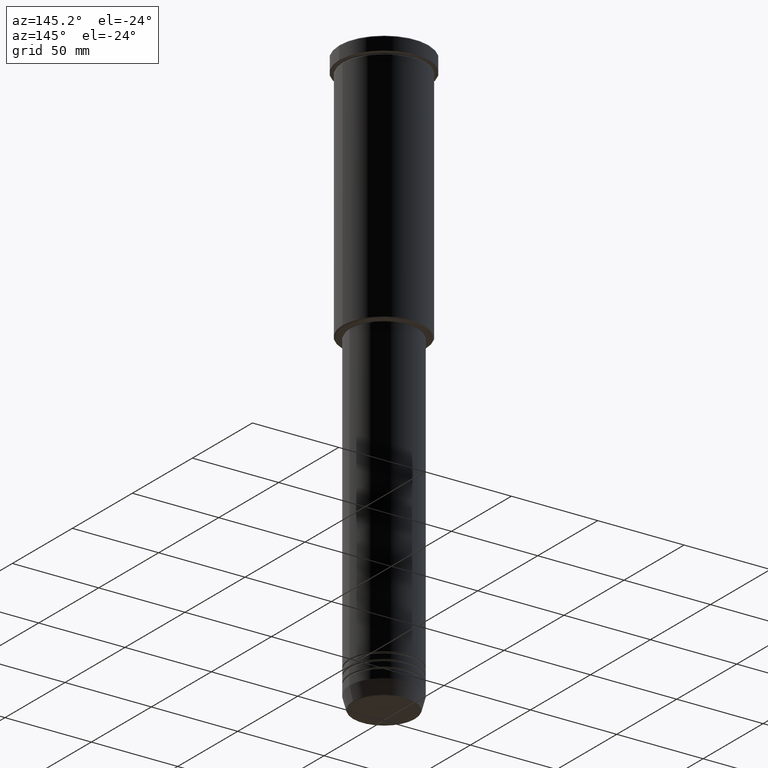
[diagram: clean part render]
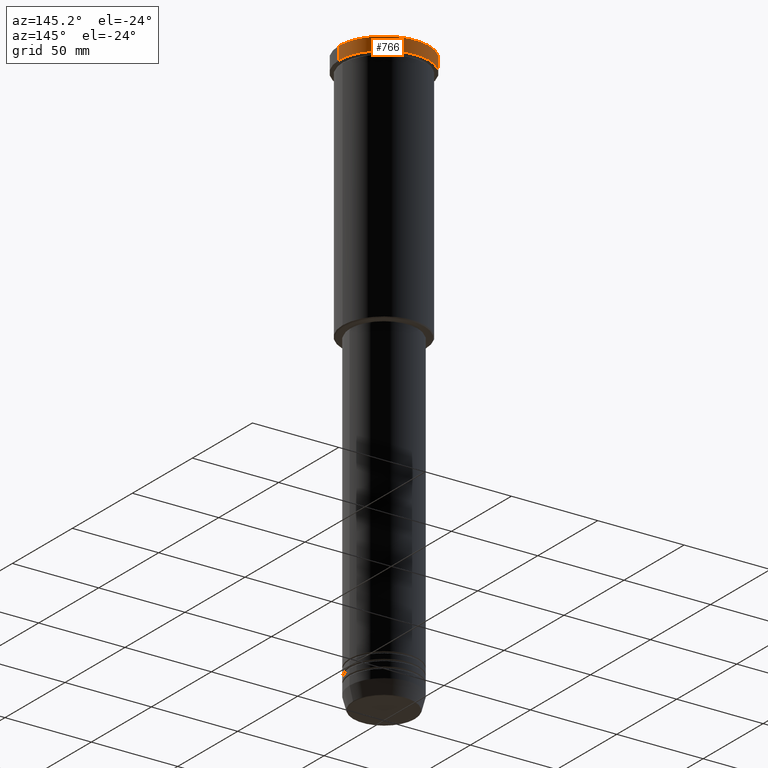
[diagram: same view with one face highlighted and labeled with its STEP entity id]
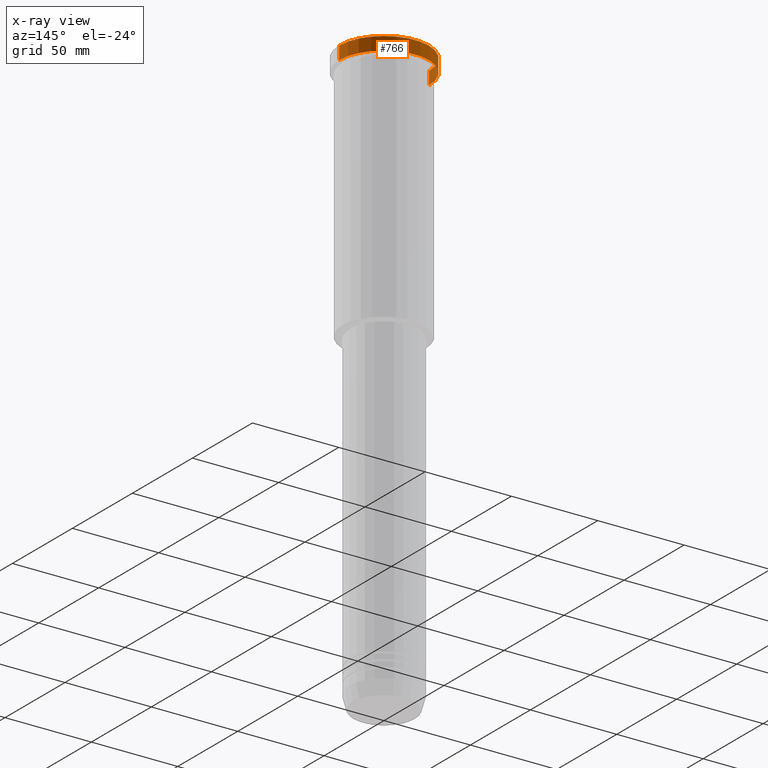
[diagram: x-ray of the same camera — body ghosted, the highlighted face saturated]
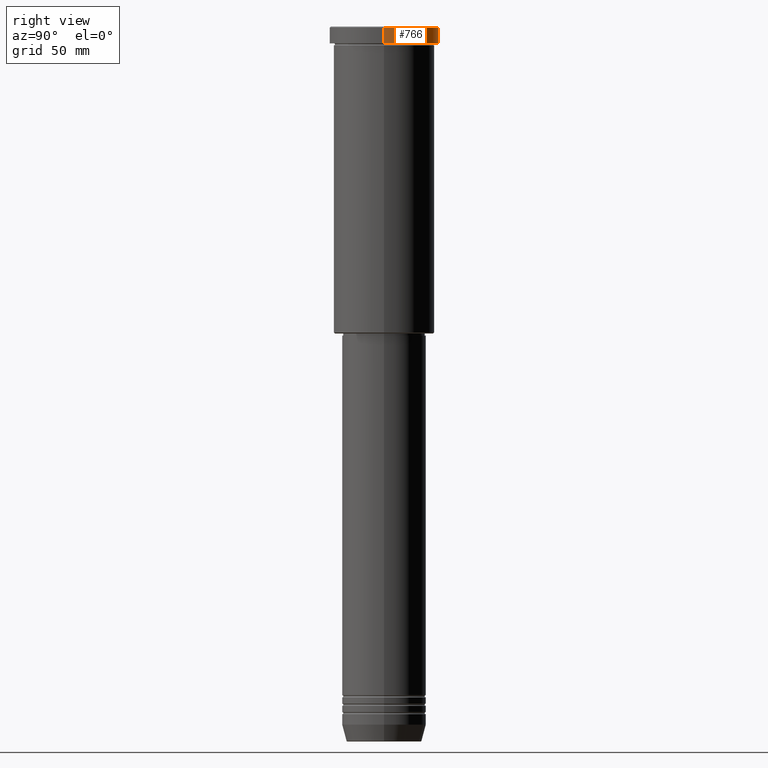
[diagram: same view with one face highlighted and labeled with its STEP entity id]
A machine part, auxiliary view. The second image highlights one B-rep face of the part: STEP entity #766.
The next image is the same camera in x-ray: the body ghosted, the highlighted face saturated — about 0% of this face is hidden behind the body in this view.
A second angle (right view) of the same face is appended — the face is thin or edge-on in the first view.
In plain terms, the highlighted cylindrical surface (partial cylindrical patch) has radius 26 mm, axis along (-0, -0, 1).
Its self-contained STEP definition (entity closure, byte-faithful):
#38 = CYLINDRICAL_SURFACE ( 'NONE', #89, 26.00000000000000000 ) ;
#60 = CARTESIAN_POINT ( 'NONE',  ( 26.00000000000000000, 0.000000000000000000, 0.000000000000000000 ) ) ;
#64 = CARTESIAN_POINT ( 'NONE',  ( -26.00000000000000000, 3.184081677783118191E-15, 0.000000000000000000 ) ) ;
#70 = VECTOR ( 'NONE', #550, 1000.000000000000000 ) ;
#89 = AXIS2_PLACEMENT_3D ( 'NONE', #1116, #299, #672 ) ;
#98 = DIRECTION ( 'NONE',  ( 1.000000000000000000, 0.000000000000000000, 0.000000000000000000 ) ) ;
#120 = FACE_OUTER_BOUND ( 'NONE', #682, .T. ) ;
#179 = VERTEX_POINT ( 'NONE', #413 ) ;
#181 = CIRCLE ( 'NONE', #1063, 26.00000000000000000 ) ;
#209 = VERTEX_POINT ( 'NONE', #708 ) ;
#243 = CARTESIAN_POINT ( 'NONE',  ( -26.00000000000000000, 3.184081677783118191E-15, -0.4999999999999692468 ) ) ;
#263 = VERTEX_POINT ( 'NONE', #529 ) ;
#269 = ORIENTED_EDGE ( 'NONE', *, *, #833, .T. ) ;
#274 = ORIENTED_EDGE ( 'NONE', *, *, #543, .T. ) ;
#278 = VERTEX_POINT ( 'NONE', #243 ) ;
#280 = EDGE_CURVE ( 'NONE', #209, #179, #633, .T. ) ;
#299 = DIRECTION ( 'NONE',  ( -0.000000000000000000, -0.000000000000000000, 1.000000000000000000 ) ) ;
#356 = CARTESIAN_POINT ( 'NONE',  ( 0.000000000000000000, 0.000000000000000000, -0.4999999999999692468 ) ) ;
#413 = CARTESIAN_POINT ( 'NONE',  ( 26.00000000000000000, 0.000000000000000000, -0.4999999999999692468 ) ) ;
#427 = AXIS2_PLACEMENT_3D ( 'NONE', #356, #1107, #98 ) ;
#529 = CARTESIAN_POINT ( 'NONE',  ( -26.00000000000000000, 3.184081677783118191E-15, -7.999999999999992895 ) ) ;
#543 = EDGE_CURVE ( 'NONE', #209, #263, #181, .T. ) ;
#550 = DIRECTION ( 'NONE',  ( -0.000000000000000000, -0.000000000000000000, 1.000000000000000000 ) ) ;
#571 = VECTOR ( 'NONE', #999, 1000.000000000000000 ) ;
#614 = LINE ( 'NONE', #64, #70 ) ;
#633 = LINE ( 'NONE', #60, #571 ) ;
#672 = DIRECTION ( 'NONE',  ( 1.000000000000000000, 0.000000000000000000, 0.000000000000000000 ) ) ;
#682 = EDGE_LOOP ( 'NONE', ( #274, #1018, #269, #1054 ) ) ;
#691 = CARTESIAN_POINT ( 'NONE',  ( 0.000000000000000000, 0.000000000000000000, -7.999999999999992895 ) ) ;
#708 = CARTESIAN_POINT ( 'NONE',  ( 26.00000000000000000, 0.000000000000000000, -7.999999999999992895 ) ) ;
#766 = ADVANCED_FACE ( 'NONE', ( #120 ), #38, .T. ) ;
#819 = EDGE_CURVE ( 'NONE', #263, #278, #614, .T. ) ;
#833 = EDGE_CURVE ( 'NONE', #278, #179, #873, .T. ) ;
#850 = DIRECTION ( 'NONE',  ( -0.000000000000000000, -0.000000000000000000, 1.000000000000000000 ) ) ;
#873 = CIRCLE ( 'NONE', #427, 26.00000000000000000 ) ;
#875 = DIRECTION ( 'NONE',  ( 1.000000000000000000, 0.000000000000000000, 0.000000000000000000 ) ) ;
#999 = DIRECTION ( 'NONE',  ( -0.000000000000000000, -0.000000000000000000, 1.000000000000000000 ) ) ;
#1018 = ORIENTED_EDGE ( 'NONE', *, *, #819, .T. ) ;
#1054 = ORIENTED_EDGE ( 'NONE', *, *, #280, .F. ) ;
#1063 = AXIS2_PLACEMENT_3D ( 'NONE', #691, #850, #875 ) ;
#1107 = DIRECTION ( 'NONE',  ( 0.000000000000000000, 0.000000000000000000, -1.000000000000000000 ) ) ;
#1116 = CARTESIAN_POINT ( 'NONE',  ( 0.000000000000000000, 0.000000000000000000, 0.000000000000000000 ) ) ;